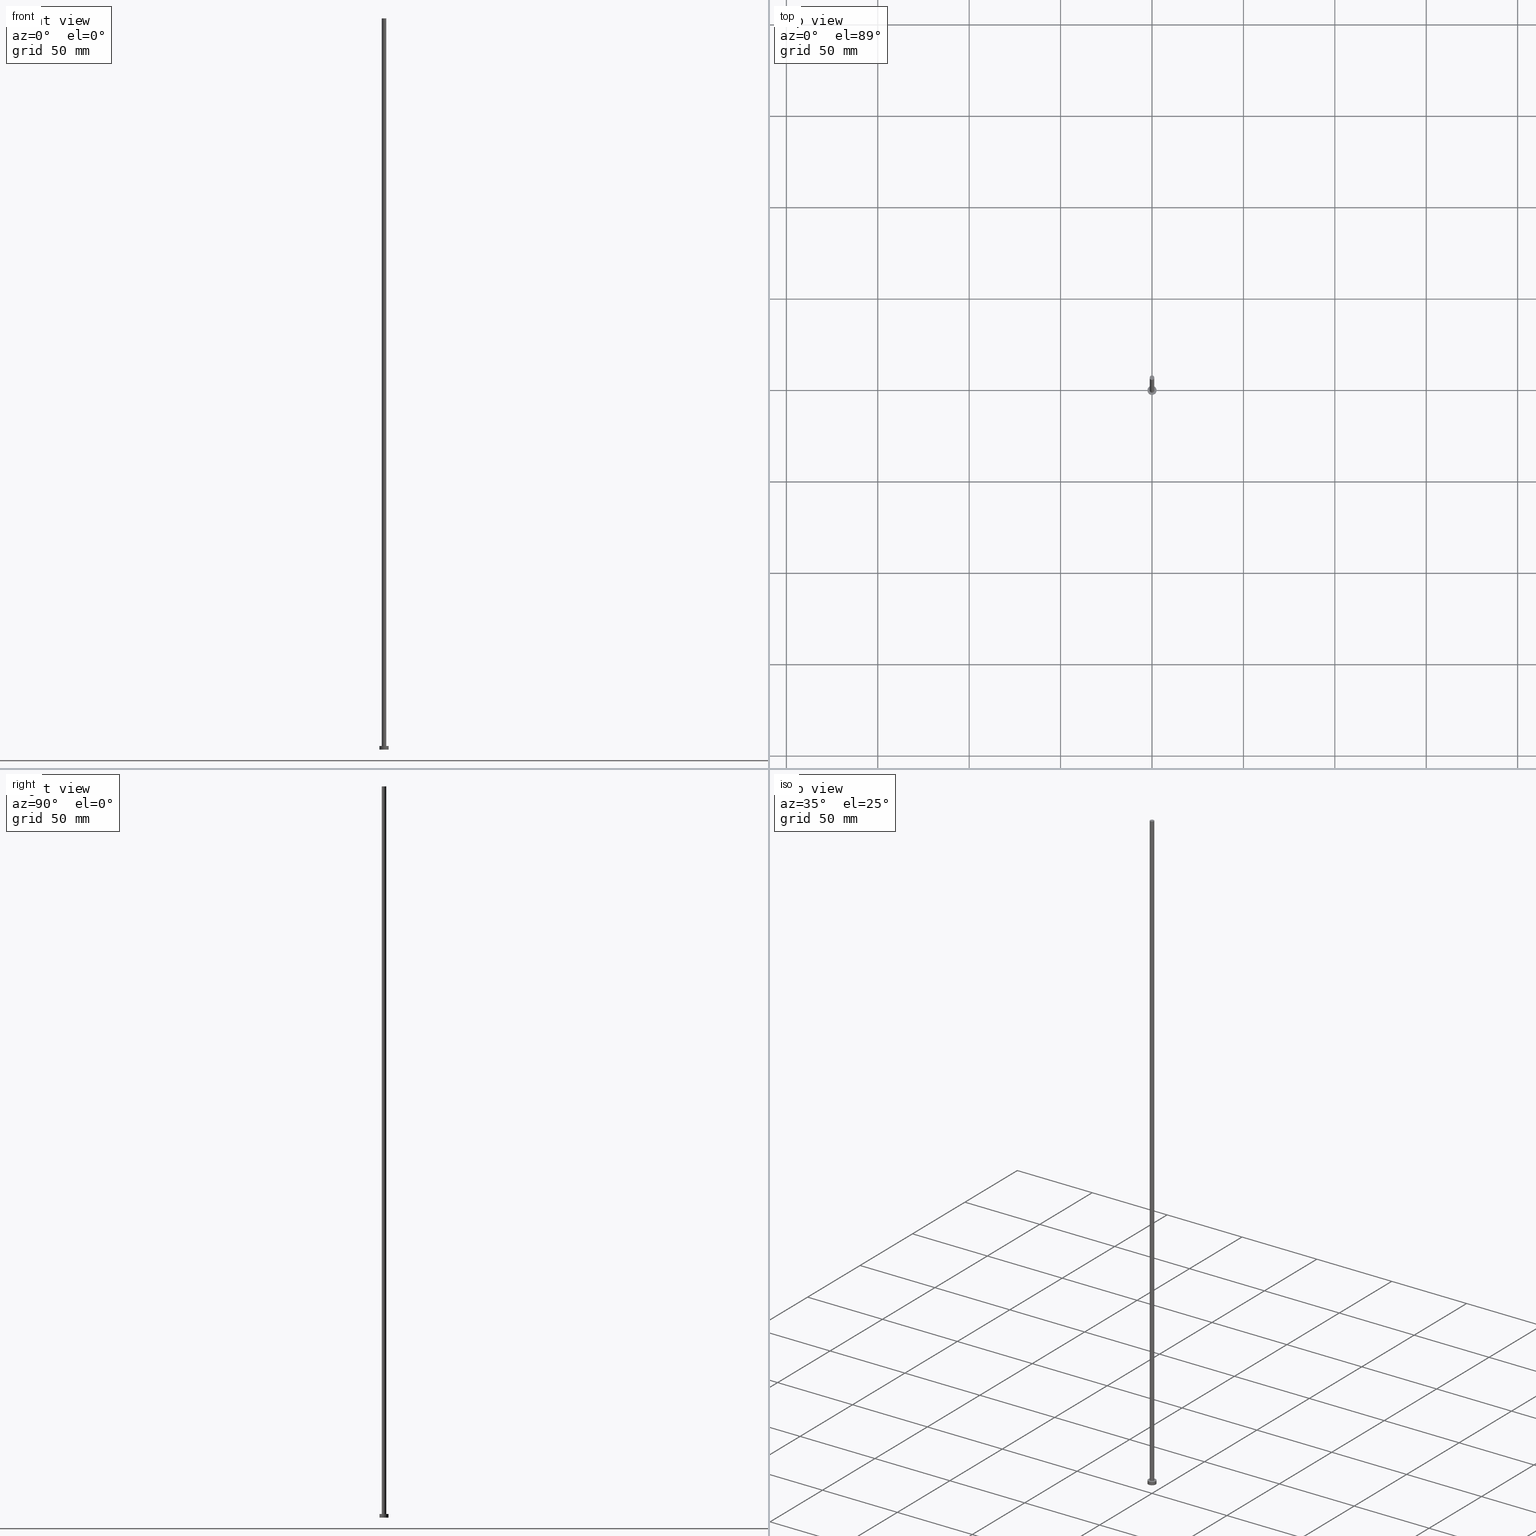
[diagram: canonical four-view strip — front | top / right | iso, engineering-drawing reading convention]
A machine part, canonical four-view strip (front | top / right | iso — engineering-drawing reading convention). The complete STEP part file that produces these views, byte-faithful:
ISO-10303-21;
HEADER;
FILE_DESCRIPTION (( 'STEP AP203' ),
    '1' );
FILE_NAME ('4820.STEP',
    '2023-02-13T17:03:44',
    ( '' ),
    ( '' ),
    'SwSTEP 2.0',
    'SolidWorks 2019',
    '' );
FILE_SCHEMA (( 'CONFIG_CONTROL_DESIGN' ));
ENDSEC;

DATA;
#1 = ADVANCED_FACE ( 'NONE', ( #56 ), #97, .T. ) ;
#2 = VERTEX_POINT ( 'NONE', #212 ) ;
#3 = PERSON_AND_ORGANIZATION_ROLE ( 'creator' ) ;
#4 = DIRECTION ( 'NONE',  ( 0.000000000000000000, 0.000000000000000000, 1.000000000000000000 ) ) ;
#5 = DIRECTION ( 'NONE',  ( 0.000000000000000000, 0.000000000000000000, 1.000000000000000000 ) ) ;
#6 = CARTESIAN_POINT ( 'NONE',  ( 0.000000000000000000, 0.000000000000000000, 400.0000000000000000 ) ) ;
#7 = PRODUCT_DEFINITION ( 'NEZN�M�', '', #237, #73 ) ;
#8 = VERTEX_POINT ( 'NONE', #213 ) ;
#9 = CALENDAR_DATE ( 2023, 13, 2 ) ;
#10 = APPROVAL_PERSON_ORGANIZATION ( #160, #50, #186 ) ;
#11 = DIRECTION ( 'NONE',  ( -0.000000000000000000, -0.000000000000000000, -1.000000000000000000 ) ) ;
#12 = DIRECTION ( 'NONE',  ( 0.000000000000000000, 0.000000000000000000, 1.000000000000000000 ) ) ;
#13 = FACE_OUTER_BOUND ( 'NONE', #207, .T. ) ;
#14 = EDGE_LOOP ( 'NONE', ( #202, #75 ) ) ;
#15 = CC_DESIGN_DATE_AND_TIME_ASSIGNMENT ( #17, #89, ( #120 ) ) ;
#16 = ORIENTED_EDGE ( 'NONE', *, *, #196, .F. ) ;
#17 = DATE_AND_TIME ( #22, #149 ) ;
#18 = ORIENTED_EDGE ( 'NONE', *, *, #88, .T. ) ;
#19 = VECTOR ( 'NONE', #145, 1000.000000000000000 ) ;
#20 = LOCAL_TIME ( 18, 3, 44.00000000000000000, #188 ) ;
#21 = CALENDAR_DATE ( 2023, 13, 2 ) ;
#22 = CALENDAR_DATE ( 2023, 13, 2 ) ;
#23 = EDGE_CURVE ( 'NONE', #171, #37, #44, .T. ) ;
#24 = ORIENTED_EDGE ( 'NONE', *, *, #84, .F. ) ;
#25 = AXIS2_PLACEMENT_3D ( 'NONE', #6, #168, #247 ) ;
#26 = ORIENTED_EDGE ( 'NONE', *, *, #208, .F. ) ;
#27 = CARTESIAN_POINT ( 'NONE',  ( 2.500000000000000000, 3.061616997868383141E-16, 2.000000000000000000 ) ) ;
#28 =( LENGTH_UNIT ( ) NAMED_UNIT ( * ) SI_UNIT ( .MILLI., .METRE. ) );
#29 = FACE_BOUND ( 'NONE', #14, .T. ) ;
#30 = PLANE ( 'NONE',  #91 ) ;
#31 = PERSON_AND_ORGANIZATION_ROLE ( 'design_owner' ) ;
#32 = ORIENTED_EDGE ( 'NONE', *, *, #23, .T. ) ;
#33 = CC_DESIGN_DATE_AND_TIME_ASSIGNMENT ( #170, #42, ( #7 ) ) ;
#34 = DIRECTION ( 'NONE',  ( 0.000000000000000000, 0.000000000000000000, 1.000000000000000000 ) ) ;
#35 = COORDINATED_UNIVERSAL_TIME_OFFSET ( 1, 0, .AHEAD. ) ;
#36 = CC_DESIGN_PERSON_AND_ORGANIZATION_ASSIGNMENT ( #54, #144, ( #120 ) ) ;
#37 = VERTEX_POINT ( 'NONE', #245 ) ;
#38 = CARTESIAN_POINT ( 'NONE',  ( 0.000000000000000000, 0.000000000000000000, 2.000000000000000000 ) ) ;
#39 = CIRCLE ( 'NONE', #240, 2.500000000000000000 ) ;
#40 = VERTEX_POINT ( 'NONE', #27 ) ;
#41 = EDGE_CURVE ( 'NONE', #2, #8, #146, .T. ) ;
#42 = DATE_TIME_ROLE ( 'creation_date' ) ;
#43 = ORIENTED_EDGE ( 'NONE', *, *, #53, .T. ) ;
#44 = CIRCLE ( 'NONE', #106, 2.500000000000000000 ) ;
#45 = EDGE_LOOP ( 'NONE', ( #190, #87, #32, #26 ) ) ;
#46 = DIRECTION ( 'NONE',  ( 0.000000000000000000, 0.000000000000000000, 1.000000000000000000 ) ) ;
#47 = CARTESIAN_POINT ( 'NONE',  ( 0.000000000000000000, 0.000000000000000000, 2.000000000000000000 ) ) ;
#48 = APPROVAL ( #255, 'NEUR�EN�' ) ;
#49 = FACE_OUTER_BOUND ( 'NONE', #79, .T. ) ;
#50 = APPROVAL ( #210, 'NEUR�EN�' ) ;
#51 = UNCERTAINTY_MEASURE_WITH_UNIT (LENGTH_MEASURE( 1.000000000000000082E-05 ), #28, 'distance_accuracy_value', 'NONE');
#52 =( GEOMETRIC_REPRESENTATION_CONTEXT ( 3 ) GLOBAL_UNCERTAINTY_ASSIGNED_CONTEXT ( ( #51 ) ) GLOBAL_UNIT_ASSIGNED_CONTEXT ( ( #28, #104, #174 ) ) REPRESENTATION_CONTEXT ( 'NONE', 'WORKASPACE' ) );
#53 = EDGE_CURVE ( 'NONE', #232, #8, #119, .T. ) ;
#54 = PERSON_AND_ORGANIZATION ( #112, #205 ) ;
#55 = CYLINDRICAL_SURFACE ( 'NONE', #248, 2.500000000000000000 ) ;
#56 = FACE_OUTER_BOUND ( 'NONE', #45, .T. ) ;
#57 = CC_DESIGN_PERSON_AND_ORGANIZATION_ASSIGNMENT ( #122, #227, ( #237 ) ) ;
#58 = DIRECTION ( 'NONE',  ( 1.000000000000000000, 0.000000000000000000, 0.000000000000000000 ) ) ;
#59 = AXIS2_PLACEMENT_3D ( 'NONE', #161, #244, #77 ) ;
#60 = APPROVAL_DATE_TIME ( #165, #50 ) ;
#61 = CARTESIAN_POINT ( 'NONE',  ( -2.500000000000000000, 0.000000000000000000, 2.000000000000000000 ) ) ;
#62 = APPLICATION_CONTEXT ( 'configuration controlled 3d designs of mechanical parts and assemblies' ) ;
#63 = PERSON_AND_ORGANIZATION ( #112, #205 ) ;
#64 = CARTESIAN_POINT ( 'NONE',  ( 0.000000000000000000, 0.000000000000000000, 2.000000000000000000 ) ) ;
#65 = ORIENTED_EDGE ( 'NONE', *, *, #101, .T. ) ;
#66 = DIRECTION ( 'NONE',  ( 0.000000000000000000, 0.000000000000000000, 1.000000000000000000 ) ) ;
#67 = APPROVAL_STATUS ( 'not_yet_approved' ) ;
#68 = FACE_OUTER_BOUND ( 'NONE', #184, .T. ) ;
#69 = CARTESIAN_POINT ( 'NONE',  ( 0.000000000000000000, 0.000000000000000000, 400.0000000000000000 ) ) ;
#70 = ADVANCED_FACE ( 'NONE', ( #226 ), #128, .T. ) ;
#71 = VECTOR ( 'NONE', #11, 1000.000000000000000 ) ;
#72 = CC_DESIGN_APPROVAL ( #50, ( #237 ) ) ;
#73 = DESIGN_CONTEXT ( 'detailed design', #62, 'design' ) ;
#74 = LOCAL_TIME ( 18, 3, 44.00000000000000000, #233 ) ;
#75 = ORIENTED_EDGE ( 'NONE', *, *, #53, .F. ) ;
#76 = PERSON_AND_ORGANIZATION_ROLE ( 'creator' ) ;
#77 = DIRECTION ( 'NONE',  ( 1.000000000000000000, 0.000000000000000000, 0.000000000000000000 ) ) ;
#78 = DIRECTION ( 'NONE',  ( 1.000000000000000000, 0.000000000000000000, 0.000000000000000000 ) ) ;
#79 = EDGE_LOOP ( 'NONE', ( #218, #229 ) ) ;
#80 = CIRCLE ( 'NONE', #59, 1.250000000000000000 ) ;
#81 = EDGE_LOOP ( 'NONE', ( #178, #24, #253, #158 ) ) ;
#82 = CIRCLE ( 'NONE', #124, 1.250000000000000000 ) ;
#83 = APPROVAL_PERSON_ORGANIZATION ( #116, #48, #86 ) ;
#84 = EDGE_CURVE ( 'NONE', #241, #40, #172, .T. ) ;
#85 = AXIS2_PLACEMENT_3D ( 'NONE', #105, #201, #214 ) ;
#86 = APPROVAL_ROLE ( '' ) ;
#87 = ORIENTED_EDGE ( 'NONE', *, *, #123, .T. ) ;
#88 = EDGE_CURVE ( 'NONE', #8, #232, #82, .T. ) ;
#89 = DATE_TIME_ROLE ( 'classification_date' ) ;
#90 = CARTESIAN_POINT ( 'NONE',  ( 0.000000000000000000, 0.000000000000000000, 400.0000000000000000 ) ) ;
#91 = AXIS2_PLACEMENT_3D ( 'NONE', #139, #66, #150 ) ;
#92 = AXIS2_PLACEMENT_3D ( 'NONE', #38, #164, #58 ) ;
#93 = APPROVAL ( #67, 'NEUR�EN�' ) ;
#94 = PERSON_AND_ORGANIZATION ( #112, #205 ) ;
#95 = ORIENTED_EDGE ( 'NONE', *, *, #242, .T. ) ;
#96 = CALENDAR_DATE ( 2023, 13, 2 ) ;
#97 = CYLINDRICAL_SURFACE ( 'NONE', #236, 2.500000000000000000 ) ;
#98 = ORIENTED_EDGE ( 'NONE', *, *, #23, .F. ) ;
#99 = APPROVAL_PERSON_ORGANIZATION ( #94, #93, #173 ) ;
#100 = CALENDAR_DATE ( 2023, 13, 2 ) ;
#101 = EDGE_CURVE ( 'NONE', #142, #232, #217, .T. ) ;
#102 = ORIENTED_EDGE ( 'NONE', *, *, #84, .T. ) ;
#103 = CARTESIAN_POINT ( 'NONE',  ( -1.250000000000000000, 0.000000000000000000, 400.0000000000000000 ) ) ;
#104 =( NAMED_UNIT ( * ) PLANE_ANGLE_UNIT ( ) SI_UNIT ( $, .RADIAN. ) );
#105 = CARTESIAN_POINT ( 'NONE',  ( 0.000000000000000000, 0.000000000000000000, 400.0000000000000000 ) ) ;
#106 = AXIS2_PLACEMENT_3D ( 'NONE', #187, #5, #78 ) ;
#107 = ADVANCED_FACE ( 'NONE', ( #29, #13 ), #151, .T. ) ;
#108 = CIRCLE ( 'NONE', #225, 1.250000000000000000 ) ;
#109 = APPLICATION_CONTEXT ( 'configuration controlled 3d designs of mechanical parts and assemblies' ) ;
#110 = DIRECTION ( 'NONE',  ( 1.000000000000000000, 0.000000000000000000, -0.000000000000000000 ) ) ;
#111 = SHAPE_DEFINITION_REPRESENTATION ( #238, #223 ) ;
#112 = PERSON ( 'NEUR�EN�', 'NEUR�EN�', 'NEUR�EN�', ('NEUR�EN�'), ('NEUR�EN�'), ('NEUR�EN�') ) ;
#113 = CARTESIAN_POINT ( 'NONE',  ( 1.250000000000000000, 1.530808498934191571E-16, 400.0000000000000000 ) ) ;
#114 = CC_DESIGN_PERSON_AND_ORGANIZATION_ASSIGNMENT ( #141, #31, ( #182 ) ) ;
#115 = DIRECTION ( 'NONE',  ( -0.000000000000000000, -0.000000000000000000, -1.000000000000000000 ) ) ;
#116 = PERSON_AND_ORGANIZATION ( #112, #205 ) ;
#117 = ORIENTED_EDGE ( 'NONE', *, *, #143, .F. ) ;
#118 = ADVANCED_FACE ( 'NONE', ( #251 ), #137, .T. ) ;
#119 = CIRCLE ( 'NONE', #92, 1.250000000000000000 ) ;
#120 = SECURITY_CLASSIFICATION ( '', '', #243 ) ;
#121 = CARTESIAN_POINT ( 'NONE',  ( 0.000000000000000000, 0.000000000000000000, 0.000000000000000000 ) ) ;
#122 = PERSON_AND_ORGANIZATION ( #112, #205 ) ;
#123 = EDGE_CURVE ( 'NONE', #40, #171, #195, .T. ) ;
#124 = AXIS2_PLACEMENT_3D ( 'NONE', #197, #46, #152 ) ;
#125 = ORIENTED_EDGE ( 'NONE', *, *, #41, .T. ) ;
#126 = LOCAL_TIME ( 18, 3, 44.00000000000000000, #35 ) ;
#127 = CARTESIAN_POINT ( 'NONE',  ( 0.000000000000000000, 0.000000000000000000, 2.000000000000000000 ) ) ;
#128 = CYLINDRICAL_SURFACE ( 'NONE', #25, 1.250000000000000000 ) ;
#129 = APPROVAL_DATE_TIME ( #224, #48 ) ;
#130 = ADVANCED_FACE ( 'NONE', ( #49 ), #235, .T. ) ;
#131 = CARTESIAN_POINT ( 'NONE',  ( 2.500000000000000000, 3.061616997868383141E-16, 0.000000000000000000 ) ) ;
#132 = DIRECTION ( 'NONE',  ( -1.000000000000000000, 0.000000000000000000, 0.000000000000000000 ) ) ;
#133 = CLOSED_SHELL ( 'NONE', ( #70, #1, #153, #107, #138, #118, #130 ) ) ;
#134 = DIRECTION ( 'NONE',  ( -0.000000000000000000, -0.000000000000000000, -1.000000000000000000 ) ) ;
#135 = CARTESIAN_POINT ( 'NONE',  ( 0.000000000000000000, 0.000000000000000000, 0.000000000000000000 ) ) ;
#136 = DIRECTION ( 'NONE',  ( 0.000000000000000000, 0.000000000000000000, 1.000000000000000000 ) ) ;
#137 = CYLINDRICAL_SURFACE ( 'NONE', #155, 1.250000000000000000 ) ;
#138 = ADVANCED_FACE ( 'NONE', ( #68 ), #30, .F. ) ;
#139 = CARTESIAN_POINT ( 'NONE',  ( 0.000000000000000000, 0.000000000000000000, 0.000000000000000000 ) ) ;
#140 = MANIFOLD_SOLID_BREP ( 'P�idat vysunut�m3', #133 ) ;
#141 = PERSON_AND_ORGANIZATION ( #112, #205 ) ;
#142 = VERTEX_POINT ( 'NONE', #234 ) ;
#143 = EDGE_CURVE ( 'NONE', #37, #171, #39, .T. ) ;
#144 = PERSON_AND_ORGANIZATION_ROLE ( 'classification_officer' ) ;
#145 = DIRECTION ( 'NONE',  ( -0.000000000000000000, -0.000000000000000000, -1.000000000000000000 ) ) ;
#146 = LINE ( 'NONE', #103, #19 ) ;
#147 = CC_DESIGN_APPROVAL ( #93, ( #120 ) ) ;
#148 = DIRECTION ( 'NONE',  ( -0.000000000000000000, -0.000000000000000000, -1.000000000000000000 ) ) ;
#149 = LOCAL_TIME ( 18, 3, 44.00000000000000000, #209 ) ;
#150 = DIRECTION ( 'NONE',  ( 1.000000000000000000, 0.000000000000000000, -0.000000000000000000 ) ) ;
#151 = PLANE ( 'NONE',  #231 ) ;
#152 = DIRECTION ( 'NONE',  ( 1.000000000000000000, 0.000000000000000000, 0.000000000000000000 ) ) ;
#153 = ADVANCED_FACE ( 'NONE', ( #169 ), #55, .T. ) ;
#154 = DIRECTION ( 'NONE',  ( -1.000000000000000000, 0.000000000000000000, 0.000000000000000000 ) ) ;
#155 = AXIS2_PLACEMENT_3D ( 'NONE', #69, #115, #154 ) ;
#156 = VECTOR ( 'NONE', #166, 1000.000000000000000 ) ;
#157 = CC_DESIGN_PERSON_AND_ORGANIZATION_ASSIGNMENT ( #193, #76, ( #237 ) ) ;
#158 = ORIENTED_EDGE ( 'NONE', *, *, #143, .T. ) ;
#159 = MECHANICAL_CONTEXT ( 'NONE', #109, 'mechanical' ) ;
#160 = PERSON_AND_ORGANIZATION ( #112, #205 ) ;
#161 = CARTESIAN_POINT ( 'NONE',  ( 0.000000000000000000, 0.000000000000000000, 400.0000000000000000 ) ) ;
#162 = ORIENTED_EDGE ( 'NONE', *, *, #167, .F. ) ;
#163 = LINE ( 'NONE', #189, #156 ) ;
#164 = DIRECTION ( 'NONE',  ( 0.000000000000000000, 0.000000000000000000, 1.000000000000000000 ) ) ;
#165 = DATE_AND_TIME ( #100, #20 ) ;
#166 = DIRECTION ( 'NONE',  ( -0.000000000000000000, -0.000000000000000000, -1.000000000000000000 ) ) ;
#167 = EDGE_CURVE ( 'NONE', #2, #142, #108, .T. ) ;
#168 = DIRECTION ( 'NONE',  ( -0.000000000000000000, -0.000000000000000000, -1.000000000000000000 ) ) ;
#169 = FACE_OUTER_BOUND ( 'NONE', #81, .T. ) ;
#170 = DATE_AND_TIME ( #96, #126 ) ;
#171 = VERTEX_POINT ( 'NONE', #131 ) ;
#172 = CIRCLE ( 'NONE', #204, 2.500000000000000000 ) ;
#173 = APPROVAL_ROLE ( '' ) ;
#174 =( NAMED_UNIT ( * ) SI_UNIT ( $, .STERADIAN. ) SOLID_ANGLE_UNIT ( ) );
#175 = DIRECTION ( 'NONE',  ( 0.000000000000000000, 0.000000000000000000, 1.000000000000000000 ) ) ;
#176 = AXIS2_PLACEMENT_3D ( 'NONE', #47, #12, #250 ) ;
#177 = DIRECTION ( 'NONE',  ( -0.000000000000000000, -0.000000000000000000, -1.000000000000000000 ) ) ;
#178 = ORIENTED_EDGE ( 'NONE', *, *, #123, .F. ) ;
#179 = CC_DESIGN_SECURITY_CLASSIFICATION ( #120, ( #237 ) ) ;
#180 = APPLICATION_PROTOCOL_DEFINITION ( 'international standard', 'config_control_design', 1994, #62 ) ;
#181 = ORIENTED_EDGE ( 'NONE', *, *, #41, .F. ) ;
#182 = PRODUCT ( '4820', '4820', '', ( #159 ) ) ;
#183 = DIRECTION ( 'NONE',  ( 1.000000000000000000, 0.000000000000000000, 0.000000000000000000 ) ) ;
#184 = EDGE_LOOP ( 'NONE', ( #117, #98 ) ) ;
#185 = DIRECTION ( 'NONE',  ( 1.000000000000000000, 0.000000000000000000, 0.000000000000000000 ) ) ;
#186 = APPROVAL_ROLE ( '' ) ;
#187 = CARTESIAN_POINT ( 'NONE',  ( 0.000000000000000000, 0.000000000000000000, 0.000000000000000000 ) ) ;
#188 = COORDINATED_UNIVERSAL_TIME_OFFSET ( 1, 0, .AHEAD. ) ;
#189 = CARTESIAN_POINT ( 'NONE',  ( -2.500000000000000000, 0.000000000000000000, 2.000000000000000000 ) ) ;
#190 = ORIENTED_EDGE ( 'NONE', *, *, #242, .F. ) ;
#191 = COORDINATED_UNIVERSAL_TIME_OFFSET ( 1, 0, .AHEAD. ) ;
#192 = ORIENTED_EDGE ( 'NONE', *, *, #101, .F. ) ;
#193 = PERSON_AND_ORGANIZATION ( #112, #205 ) ;
#194 = AXIS2_PLACEMENT_3D ( 'NONE', #121, #206, #183 ) ;
#195 = LINE ( 'NONE', #239, #71 ) ;
#196 = EDGE_CURVE ( 'NONE', #142, #2, #80, .T. ) ;
#197 = CARTESIAN_POINT ( 'NONE',  ( 0.000000000000000000, 0.000000000000000000, 2.000000000000000000 ) ) ;
#198 = CARTESIAN_POINT ( 'NONE',  ( 0.000000000000000000, 0.000000000000000000, 2.000000000000000000 ) ) ;
#199 = LOCAL_TIME ( 18, 3, 44.00000000000000000, #191 ) ;
#200 = APPLICATION_PROTOCOL_DEFINITION ( 'international standard', 'config_control_design', 1994, #109 ) ;
#201 = DIRECTION ( 'NONE',  ( 0.000000000000000000, 0.000000000000000000, 1.000000000000000000 ) ) ;
#202 = ORIENTED_EDGE ( 'NONE', *, *, #88, .F. ) ;
#203 = DIRECTION ( 'NONE',  ( 1.000000000000000000, 0.000000000000000000, 0.000000000000000000 ) ) ;
#204 = AXIS2_PLACEMENT_3D ( 'NONE', #252, #136, #216 ) ;
#205 = ORGANIZATION ( 'NEUR�EN�', 'NEUR�EN�', '' ) ;
#206 = DIRECTION ( 'NONE',  ( 0.000000000000000000, 0.000000000000000000, 1.000000000000000000 ) ) ;
#207 = EDGE_LOOP ( 'NONE', ( #102, #95 ) ) ;
#208 = EDGE_CURVE ( 'NONE', #241, #37, #163, .T. ) ;
#209 = COORDINATED_UNIVERSAL_TIME_OFFSET ( 1, 0, .AHEAD. ) ;
#210 = APPROVAL_STATUS ( 'not_yet_approved' ) ;
#211 = VECTOR ( 'NONE', #177, 1000.000000000000000 ) ;
#212 = CARTESIAN_POINT ( 'NONE',  ( -1.250000000000000000, 0.000000000000000000, 400.0000000000000000 ) ) ;
#213 = CARTESIAN_POINT ( 'NONE',  ( -1.250000000000000000, 0.000000000000000000, 2.000000000000000000 ) ) ;
#214 = DIRECTION ( 'NONE',  ( 1.000000000000000000, 0.000000000000000000, -0.000000000000000000 ) ) ;
#215 = APPROVAL_DATE_TIME ( #249, #93 ) ;
#216 = DIRECTION ( 'NONE',  ( 1.000000000000000000, 0.000000000000000000, 0.000000000000000000 ) ) ;
#217 = LINE ( 'NONE', #113, #211 ) ;
#218 = ORIENTED_EDGE ( 'NONE', *, *, #167, .T. ) ;
#219 = PRODUCT_RELATED_PRODUCT_CATEGORY ( 'detail', '', ( #182 ) ) ;
#220 = CC_DESIGN_APPROVAL ( #48, ( #7 ) ) ;
#221 = EDGE_LOOP ( 'NONE', ( #16, #65, #43, #181 ) ) ;
#222 = EDGE_LOOP ( 'NONE', ( #192, #162, #125, #18 ) ) ;
#223 = ADVANCED_BREP_SHAPE_REPRESENTATION ( '4820', ( #140, #194 ), #52 ) ;
#224 = DATE_AND_TIME ( #21, #199 ) ;
#225 = AXIS2_PLACEMENT_3D ( 'NONE', #90, #4, #185 ) ;
#226 = FACE_OUTER_BOUND ( 'NONE', #221, .T. ) ;
#227 = PERSON_AND_ORGANIZATION_ROLE ( 'design_supplier' ) ;
#228 = DIRECTION ( 'NONE',  ( -1.000000000000000000, 0.000000000000000000, 0.000000000000000000 ) ) ;
#229 = ORIENTED_EDGE ( 'NONE', *, *, #196, .T. ) ;
#230 = CC_DESIGN_PERSON_AND_ORGANIZATION_ASSIGNMENT ( #63, #3, ( #7 ) ) ;
#231 = AXIS2_PLACEMENT_3D ( 'NONE', #198, #175, #110 ) ;
#232 = VERTEX_POINT ( 'NONE', #246 ) ;
#233 = COORDINATED_UNIVERSAL_TIME_OFFSET ( 1, 0, .AHEAD. ) ;
#234 = CARTESIAN_POINT ( 'NONE',  ( 1.250000000000000000, 1.530808498934191571E-16, 400.0000000000000000 ) ) ;
#235 = PLANE ( 'NONE',  #85 ) ;
#236 = AXIS2_PLACEMENT_3D ( 'NONE', #64, #134, #132 ) ;
#237 = PRODUCT_DEFINITION_FORMATION_WITH_SPECIFIED_SOURCE ( 'LIBOVOLN�', '', #182, .NOT_KNOWN. ) ;
#238 = PRODUCT_DEFINITION_SHAPE ( 'NONE', 'NONE',  #7 ) ;
#239 = CARTESIAN_POINT ( 'NONE',  ( 2.500000000000000000, 3.061616997868383141E-16, 2.000000000000000000 ) ) ;
#240 = AXIS2_PLACEMENT_3D ( 'NONE', #135, #34, #203 ) ;
#241 = VERTEX_POINT ( 'NONE', #61 ) ;
#242 = EDGE_CURVE ( 'NONE', #40, #241, #254, .T. ) ;
#243 = SECURITY_CLASSIFICATION_LEVEL ( 'unclassified' ) ;
#244 = DIRECTION ( 'NONE',  ( 0.000000000000000000, 0.000000000000000000, 1.000000000000000000 ) ) ;
#245 = CARTESIAN_POINT ( 'NONE',  ( -2.500000000000000000, 0.000000000000000000, 0.000000000000000000 ) ) ;
#246 = CARTESIAN_POINT ( 'NONE',  ( 1.250000000000000000, 1.530808498934191571E-16, 2.000000000000000000 ) ) ;
#247 = DIRECTION ( 'NONE',  ( -1.000000000000000000, 0.000000000000000000, 0.000000000000000000 ) ) ;
#248 = AXIS2_PLACEMENT_3D ( 'NONE', #127, #148, #228 ) ;
#249 = DATE_AND_TIME ( #9, #74 ) ;
#250 = DIRECTION ( 'NONE',  ( 1.000000000000000000, 0.000000000000000000, 0.000000000000000000 ) ) ;
#251 = FACE_OUTER_BOUND ( 'NONE', #222, .T. ) ;
#252 = CARTESIAN_POINT ( 'NONE',  ( 0.000000000000000000, 0.000000000000000000, 2.000000000000000000 ) ) ;
#253 = ORIENTED_EDGE ( 'NONE', *, *, #208, .T. ) ;
#254 = CIRCLE ( 'NONE', #176, 2.500000000000000000 ) ;
#255 = APPROVAL_STATUS ( 'not_yet_approved' ) ;
ENDSEC;
END-ISO-10303-21;
